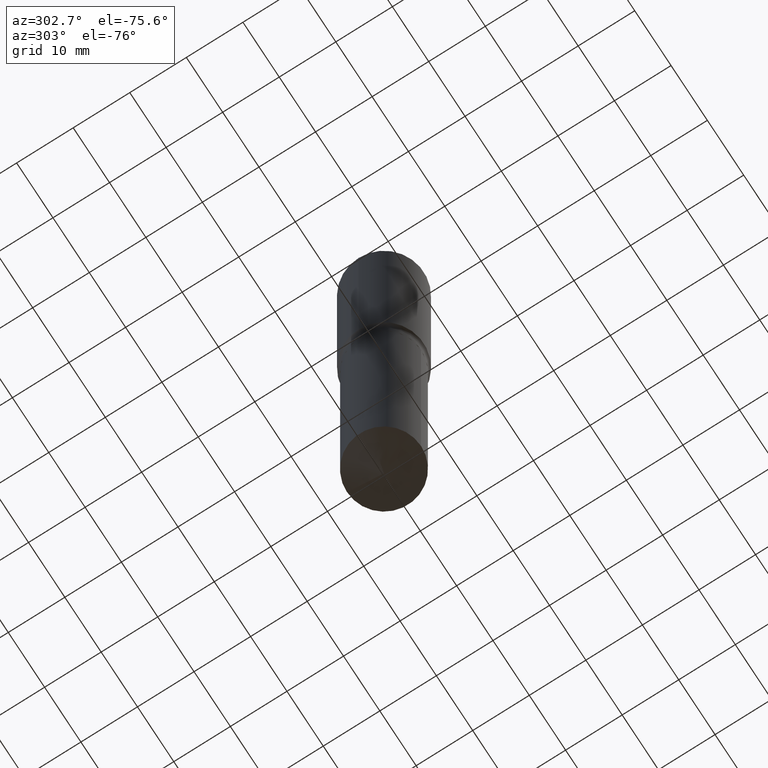
[diagram: clean part render]
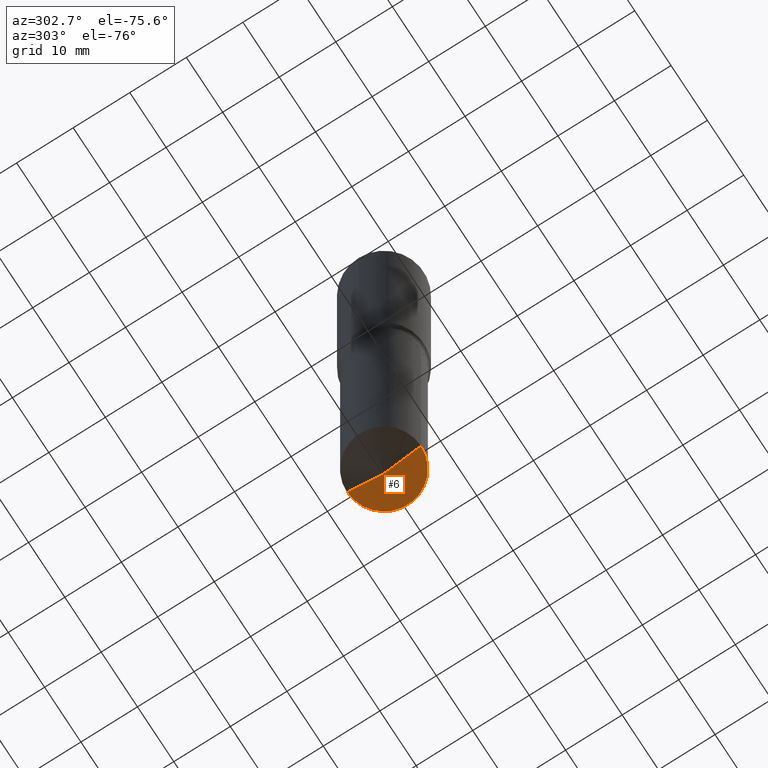
[diagram: same view with one face highlighted and labeled with its STEP entity id]
A machine part, auxiliary view. The second image highlights one B-rep face of the part: STEP entity #6.
In plain terms, the highlighted conical surface has half-angle 68 deg.
Its self-contained STEP definition (entity closure, byte-faithful):
#5 = LINE ( 'NONE', #451, #53 ) ;
#6 = ADVANCED_FACE ( 'NONE', ( #456 ), #71, .T. ) ;
#28 = VERTEX_POINT ( 'NONE', #122 ) ;
#37 = DIRECTION ( 'NONE',  ( -2.445479514057623274E-29, 3.491466004560290354E-15, 1.000000000000000000 ) ) ;
#53 = VECTOR ( 'NONE', #417, 39.37007874015748143 ) ;
#71 = CONICAL_SURFACE ( 'NONE', #350, 97.44436430772937285, 1.186823891356148408 ) ;
#72 = ORIENTED_EDGE ( 'NONE', *, *, #78, .T. ) ;
#78 = EDGE_CURVE ( 'NONE', #214, #28, #5, .T. ) ;
#116 = CARTESIAN_POINT ( 'NONE',  ( -8.597691383881878923E-28, 1.227511134527540087E-13, 35.15747874015747954 ) ) ;
#122 = CARTESIAN_POINT ( 'NONE',  ( 1.831779172789637488E-15, 0.2577999999999855962, -4.108442038979699618 ) ) ;
#129 = EDGE_LOOP ( 'NONE', ( #482, #72, #328 ) ) ;
#169 = DIRECTION ( 'NONE',  ( -6.982962677686265922E-15, -1.000000000000000000, 4.238709066973255853E-15 ) ) ;
#187 = EDGE_CURVE ( 'NONE', #209, #28, #379, .T. ) ;
#207 = CARTESIAN_POINT ( 'NONE',  ( 1.004709102717073275E-28, -1.434451408536097576E-14, -4.108442038979697841 ) ) ;
#209 = VERTEX_POINT ( 'NONE', #426 ) ;
#214 = VERTEX_POINT ( 'NONE', #394 ) ;
#216 = AXIS2_PLACEMENT_3D ( 'NONE', #207, #244, #169 ) ;
#217 = CARTESIAN_POINT ( 'NONE',  ( 1.030178737322464713E-28, -1.470820643992466918E-14, -4.212600000000000122 ) ) ;
#226 = VECTOR ( 'NONE', #473, 39.37007874015748854 ) ;
#244 = DIRECTION ( 'NONE',  ( -2.445479514057623274E-29, 3.491466004560290354E-15, 1.000000000000000000 ) ) ;
#328 = ORIENTED_EDGE ( 'NONE', *, *, #187, .F. ) ;
#344 = DIRECTION ( 'NONE',  ( -6.982962677686266711E-15, -1.000000000000000000, 3.498761904101793637E-15 ) ) ;
#350 = AXIS2_PLACEMENT_3D ( 'NONE', #116, #37, #344 ) ;
#379 = CIRCLE ( 'NONE', #216, 0.2577999999999999736 ) ;
#394 = CARTESIAN_POINT ( 'NONE',  ( 1.030182700091914490E-28, -1.470814969081067906E-14, -4.212600000000000122 ) ) ;
#408 = LINE ( 'NONE', #217, #226 ) ;
#417 = DIRECTION ( 'NONE',  ( 6.588037525764800757E-15, 0.9271838545667901998, 0.3746065934159048538 ) ) ;
#425 = EDGE_CURVE ( 'NONE', #214, #209, #408, .T. ) ;
#426 = CARTESIAN_POINT ( 'NONE',  ( -1.800207778307418587E-15, -0.2578000000000142400, -4.108442038979696953 ) ) ;
#451 = CARTESIAN_POINT ( 'NONE',  ( 1.030182734840724814E-28, -1.470814969081067906E-14, -4.212600000000000122 ) ) ;
#456 = FACE_OUTER_BOUND ( 'NONE', #129, .T. ) ;
#473 = DIRECTION ( 'NONE',  ( -6.474490251793187306E-15, -0.9271838545667877574, 0.3746065934159112931 ) ) ;
#482 = ORIENTED_EDGE ( 'NONE', *, *, #425, .F. ) ;